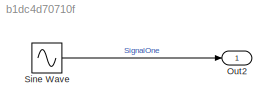
MODEL slx_b1dc4d70710f
KIND model
CONFIG AbsTol = auto
CONFIG EnableMultiTasking = off
CONFIG FixedStep = auto
CONFIG MaxStep = auto
CONFIG MinStep = auto
CONFIG RelTol = 1e-3
CONFIG SampleTimeConstraint = Unconstrained
CONFIG Solver = VariableStepAuto
CONFIG SolverName = VariableStepAuto
CONFIG StartTime = 0.0
CONFIG StopTime = 10.0
BLOCK [Outport] Out2
  IconDisplay = Port number
BLOCK [Sin] Sine Wave
  Ports = [0, 1]
  SampleTime = 0
LINE Sine Wave:1 -> Out2:1
